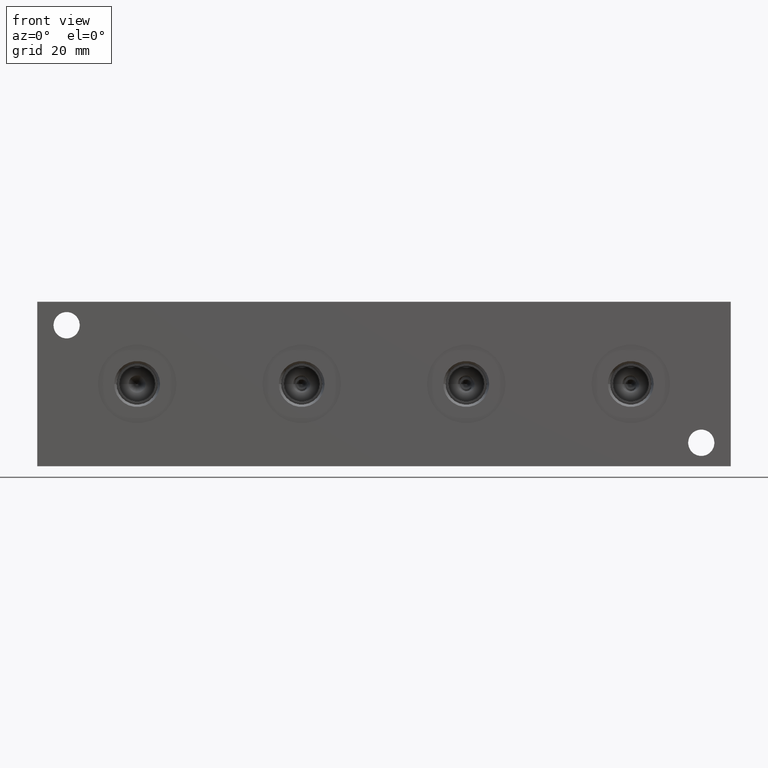
[diagram: clean part render]
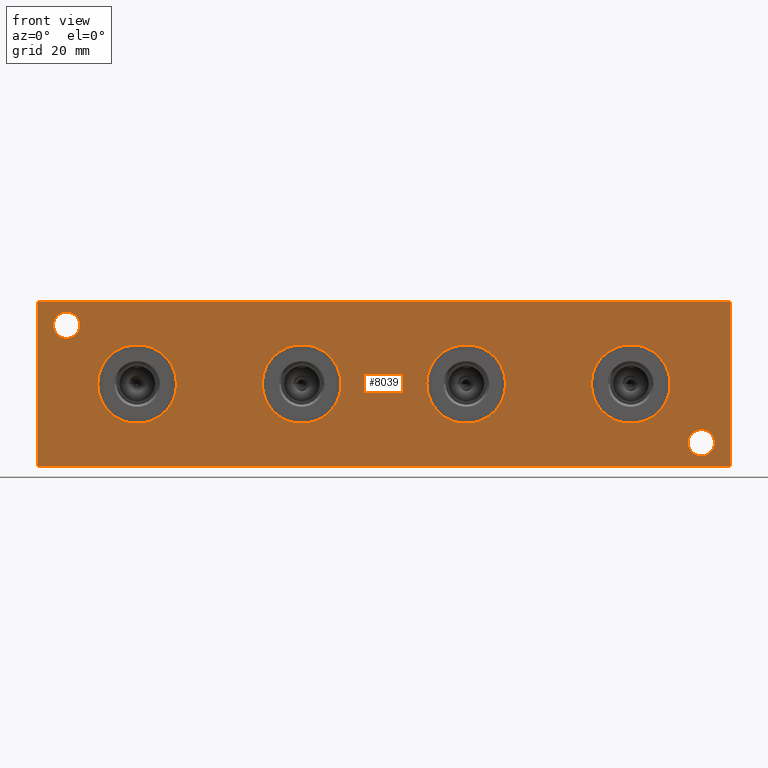
[diagram: same view with one face highlighted and labeled with its STEP entity id]
A machine part, front view. The second image highlights one B-rep face of the part: STEP entity #8039.
In plain terms, the highlighted planar face has unit normal (0, -1, 0).
Its self-contained STEP definition (entity closure, byte-faithful):
#207=CIRCLE('',#8389,10.6426);
#208=CIRCLE('',#8390,10.6426);
#212=CIRCLE('',#8398,10.6426);
#213=CIRCLE('',#8399,10.6426);
#217=CIRCLE('',#8415,10.6426);
#218=CIRCLE('',#8416,10.6426);
#222=CIRCLE('',#8432,10.6426);
#223=CIRCLE('',#8433,10.6426);
#272=CIRCLE('',#8526,3.5687);
#273=CIRCLE('',#8527,3.5687);
#275=CIRCLE('',#8535,3.5687);
#276=CIRCLE('',#8536,3.5687);
#333=FACE_BOUND('',#1514,.T.);
#334=FACE_BOUND('',#1515,.T.);
#335=FACE_BOUND('',#1516,.T.);
#336=FACE_BOUND('',#1517,.T.);
#337=FACE_BOUND('',#1518,.T.);
#338=FACE_BOUND('',#1519,.T.);
#1046=FACE_OUTER_BOUND('',#1513,.T.);
#1513=EDGE_LOOP('',(#7072,#7073,#7074,#7075));
#1514=EDGE_LOOP('',(#7076,#7077));
#1515=EDGE_LOOP('',(#7078,#7079));
#1516=EDGE_LOOP('',(#7080,#7081));
#1517=EDGE_LOOP('',(#7082,#7083));
#1518=EDGE_LOOP('',(#7084,#7085));
#1519=EDGE_LOOP('',(#7086,#7087));
#1789=LINE('',#12334,#2528);
#2256=LINE('',#13828,#2995);
#2261=LINE('',#13837,#3000);
#2262=LINE('',#13839,#3001);
#2528=VECTOR('',#8962,10.);
#2995=VECTOR('',#10277,10.);
#3000=VECTOR('',#10286,10.);
#3001=VECTOR('',#10289,10.);
#3296=VERTEX_POINT('',#12332);
#3297=VERTEX_POINT('',#12333);
#3645=VERTEX_POINT('',#13515);
#3646=VERTEX_POINT('',#13516);
#3651=VERTEX_POINT('',#13533);
#3652=VERTEX_POINT('',#13534);
#3662=VERTEX_POINT('',#13565);
#3663=VERTEX_POINT('',#13566);
#3673=VERTEX_POINT('',#13597);
#3674=VERTEX_POINT('',#13598);
#3727=VERTEX_POINT('',#13781);
#3728=VERTEX_POINT('',#13782);
#3732=VERTEX_POINT('',#13797);
#3733=VERTEX_POINT('',#13798);
#3740=VERTEX_POINT('',#13826);
#3742=VERTEX_POINT('',#13835);
#4184=EDGE_CURVE('',#3296,#3297,#1789,.T.);
#4703=EDGE_CURVE('',#3645,#3646,#207,.T.);
#4704=EDGE_CURVE('',#3646,#3645,#208,.T.);
#4711=EDGE_CURVE('',#3651,#3652,#212,.T.);
#4712=EDGE_CURVE('',#3652,#3651,#213,.T.);
#4727=EDGE_CURVE('',#3662,#3663,#217,.T.);
#4728=EDGE_CURVE('',#3663,#3662,#218,.T.);
#4743=EDGE_CURVE('',#3673,#3674,#222,.T.);
#4744=EDGE_CURVE('',#3674,#3673,#223,.T.);
#4829=EDGE_CURVE('',#3727,#3728,#272,.T.);
#4830=EDGE_CURVE('',#3728,#3727,#273,.T.);
#4838=EDGE_CURVE('',#3732,#3733,#275,.T.);
#4839=EDGE_CURVE('',#3733,#3732,#276,.T.);
#4854=EDGE_CURVE('',#3740,#3296,#2256,.T.);
#4859=EDGE_CURVE('',#3742,#3297,#2261,.T.);
#4860=EDGE_CURVE('',#3740,#3742,#2262,.T.);
#7072=ORIENTED_EDGE('',*,*,#4860,.T.);
#7073=ORIENTED_EDGE('',*,*,#4859,.T.);
#7074=ORIENTED_EDGE('',*,*,#4184,.F.);
#7075=ORIENTED_EDGE('',*,*,#4854,.F.);
#7076=ORIENTED_EDGE('',*,*,#4703,.T.);
#7077=ORIENTED_EDGE('',*,*,#4704,.T.);
#7078=ORIENTED_EDGE('',*,*,#4711,.T.);
#7079=ORIENTED_EDGE('',*,*,#4712,.T.);
#7080=ORIENTED_EDGE('',*,*,#4727,.T.);
#7081=ORIENTED_EDGE('',*,*,#4728,.T.);
#7082=ORIENTED_EDGE('',*,*,#4743,.T.);
#7083=ORIENTED_EDGE('',*,*,#4744,.T.);
#7084=ORIENTED_EDGE('',*,*,#4829,.T.);
#7085=ORIENTED_EDGE('',*,*,#4830,.T.);
#7086=ORIENTED_EDGE('',*,*,#4838,.T.);
#7087=ORIENTED_EDGE('',*,*,#4839,.T.);
#7327=PLANE('',#8552);
#8039=ADVANCED_FACE('',(#1046,#333,#334,#335,#336,#337,#338),#7327,.T.);
#8389=AXIS2_PLACEMENT_3D('',#13517,#9899,#9900);
#8390=AXIS2_PLACEMENT_3D('',#13518,#9901,#9902);
#8398=AXIS2_PLACEMENT_3D('',#13535,#9920,#9921);
#8399=AXIS2_PLACEMENT_3D('',#13536,#9922,#9923);
#8415=AXIS2_PLACEMENT_3D('',#13567,#9958,#9959);
#8416=AXIS2_PLACEMENT_3D('',#13568,#9960,#9961);
#8432=AXIS2_PLACEMENT_3D('',#13599,#9996,#9997);
#8433=AXIS2_PLACEMENT_3D('',#13600,#9998,#9999);
#8526=AXIS2_PLACEMENT_3D('',#13783,#10220,#10221);
#8527=AXIS2_PLACEMENT_3D('',#13784,#10222,#10223);
#8535=AXIS2_PLACEMENT_3D('',#13799,#10240,#10241);
#8536=AXIS2_PLACEMENT_3D('',#13800,#10242,#10243);
#8552=AXIS2_PLACEMENT_3D('',#13838,#10287,#10288);
#8962=DIRECTION('',(1.,0.,0.));
#9899=DIRECTION('center_axis',(0.,1.,0.));
#9900=DIRECTION('ref_axis',(1.,0.,0.));
#9901=DIRECTION('center_axis',(0.,1.,0.));
#9902=DIRECTION('ref_axis',(1.,0.,0.));
#9920=DIRECTION('center_axis',(0.,1.,0.));
#9921=DIRECTION('ref_axis',(1.,0.,0.));
#9922=DIRECTION('center_axis',(0.,1.,0.));
#9923=DIRECTION('ref_axis',(1.,0.,0.));
#9958=DIRECTION('center_axis',(0.,1.,0.));
#9959=DIRECTION('ref_axis',(1.,0.,0.));
#9960=DIRECTION('center_axis',(0.,1.,0.));
#9961=DIRECTION('ref_axis',(1.,0.,0.));
#9996=DIRECTION('center_axis',(0.,1.,0.));
#9997=DIRECTION('ref_axis',(1.,0.,0.));
#9998=DIRECTION('center_axis',(0.,1.,0.));
#9999=DIRECTION('ref_axis',(1.,0.,0.));
#10220=DIRECTION('center_axis',(0.,1.,0.));
#10221=DIRECTION('ref_axis',(1.,0.,0.));
#10222=DIRECTION('center_axis',(0.,1.,0.));
#10223=DIRECTION('ref_axis',(1.,0.,0.));
#10240=DIRECTION('center_axis',(0.,1.,0.));
#10241=DIRECTION('ref_axis',(1.,0.,0.));
#10242=DIRECTION('center_axis',(0.,1.,0.));
#10243=DIRECTION('ref_axis',(1.,0.,0.));
#10277=DIRECTION('',(0.,0.,1.));
#10286=DIRECTION('',(0.,0.,1.));
#10287=DIRECTION('center_axis',(0.,-1.,0.));
#10288=DIRECTION('ref_axis',(1.,0.,0.));
#10289=DIRECTION('',(1.,0.,0.));
#12332=CARTESIAN_POINT('',(0.,0.,44.45));
#12333=CARTESIAN_POINT('',(187.325,0.,44.45));
#12334=CARTESIAN_POINT('',(0.,0.,44.45));
#13515=CARTESIAN_POINT('',(126.5174,0.,22.225));
#13516=CARTESIAN_POINT('',(105.2322,0.,22.225));
#13517=CARTESIAN_POINT('Origin',(115.8748,0.,22.225));
#13518=CARTESIAN_POINT('Origin',(115.8748,0.,22.225));
#13533=CARTESIAN_POINT('',(37.6174,0.,22.225));
#13534=CARTESIAN_POINT('',(16.3322,0.,22.225));
#13535=CARTESIAN_POINT('Origin',(26.9748,0.,22.225));
#13536=CARTESIAN_POINT('Origin',(26.9748,0.,22.225));
#13565=CARTESIAN_POINT('',(82.0674,0.,22.225));
#13566=CARTESIAN_POINT('',(60.7822,0.,22.225));
#13567=CARTESIAN_POINT('Origin',(71.4248,0.,22.225));
#13568=CARTESIAN_POINT('Origin',(71.4248,0.,22.225));
#13597=CARTESIAN_POINT('',(170.9674,0.,22.225));
#13598=CARTESIAN_POINT('',(149.6822,0.,22.225));
#13599=CARTESIAN_POINT('Origin',(160.3248,0.,22.225));
#13600=CARTESIAN_POINT('Origin',(160.3248,0.,22.225));
#13781=CARTESIAN_POINT('',(11.4935,0.,38.1));
#13782=CARTESIAN_POINT('',(4.3561,0.,38.1));
#13783=CARTESIAN_POINT('Origin',(7.9248,0.,38.1));
#13784=CARTESIAN_POINT('Origin',(7.9248,0.,38.1));
#13797=CARTESIAN_POINT('',(182.9435,0.,6.35));
#13798=CARTESIAN_POINT('',(175.8061,0.,6.35));
#13799=CARTESIAN_POINT('Origin',(179.3748,0.,6.35));
#13800=CARTESIAN_POINT('Origin',(179.3748,0.,6.35));
#13826=CARTESIAN_POINT('',(0.,0.,0.));
#13828=CARTESIAN_POINT('',(0.,0.,0.));
#13835=CARTESIAN_POINT('',(187.325,0.,0.));
#13837=CARTESIAN_POINT('',(187.325,0.,0.));
#13838=CARTESIAN_POINT('Origin',(0.,0.,0.));
#13839=CARTESIAN_POINT('',(0.,0.,0.));